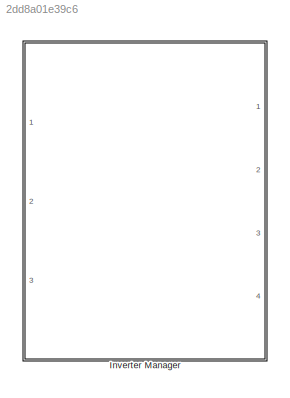
MODEL slx_2dd8a01e39c6
KIND library
CONFIG AbsTol = auto
CONFIG EnableMultiTasking = off
CONFIG FixedStep = auto
CONFIG MaxStep = auto
CONFIG MinStep = auto
CONFIG RelTol = 1e-3
CONFIG SampleTimeConstraint = Unconstrained
CONFIG Solver = VariableStepAuto
CONFIG SolverName = VariableStepAuto
CONFIG StartTime = 0.0
CONFIG StopTime = 10.0
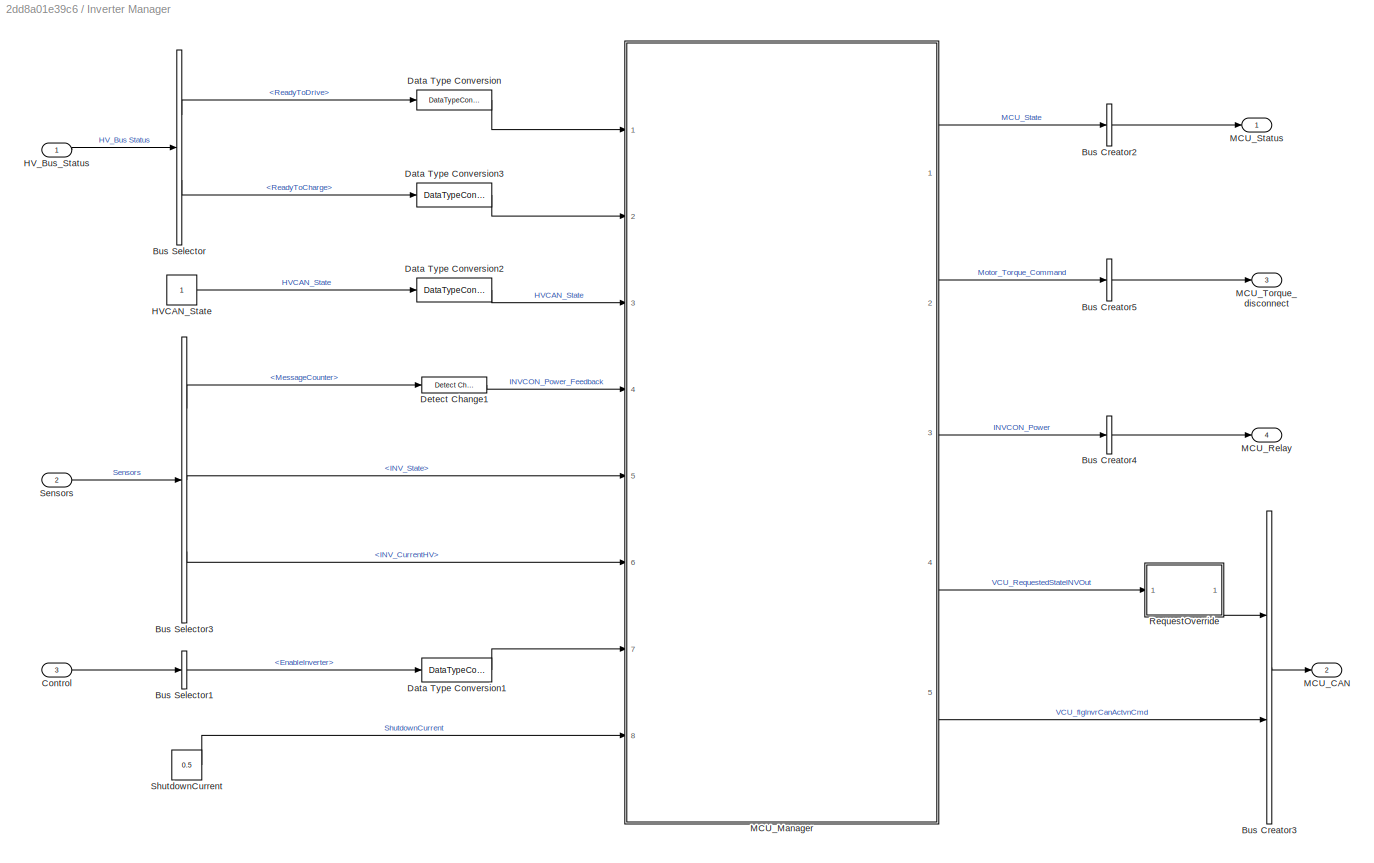
BLOCK [SubSystem] Inverter Manager
  Ports = [3, 4]
  RequestExecContextInheritance = off
  Variant = off
BLOCK [BusCreator] Inverter Manager/Bus Creator2
  DisplayOption = bar
  InheritFromInputs = on
  Inputs = 1
  Ports = [1, 1]
BLOCK [BusCreator] Inverter Manager/Bus Creator3
  DisplayOption = bar
  InheritFromInputs = on
  Inputs = 2
  Ports = [2, 1]
BLOCK [BusCreator] Inverter Manager/Bus Creator4
  DisplayOption = bar
  InheritFromInputs = on
  Inputs = 1
  Ports = [1, 1]
BLOCK [BusCreator] Inverter Manager/Bus Creator5
  DisplayOption = bar
  InheritFromInputs = on
  Inputs = 1
  Ports = [1, 1]
BLOCK [BusSelector] Inverter Manager/Bus Selector
  OutputAsBus = off
  OutputSignals = ReadyToDrive,ReadyToCharge
  Ports = [1, 2]
BLOCK [BusSelector] Inverter Manager/Bus Selector1
  OutputAsBus = off
  OutputSignals = EnableInverter
  Ports = [1, 1]
BLOCK [BusSelector] Inverter Manager/Bus Selector3
  OutputAsBus = off
  OutputSignals = from_CAN.fromHV_CAN.from_MCU.INV_VCU_01.MessageCounter,from_CAN.fromHV_CAN.from_MCU.INV_VCU_01.INV_State,from_CAN.fromHV_CAN.from_MCU.INV_VCU_01.INV_CurrentHV
  Ports = [1, 3]
BLOCK [Inport] Inverter Manager/Control
  IconDisplay = Port number
  Port = 3
BLOCK [DataTypeConversion] Inverter Manager/Data Type Conversion
  OutDataTypeStr = boolean
  RndMeth = Floor
  SaturateOnIntegerOverflow = off
BLOCK [DataTypeConversion] Inverter Manager/Data Type Conversion1
  OutDataTypeStr = boolean
  RndMeth = Floor
  SaturateOnIntegerOverflow = off
BLOCK [DataTypeConversion] Inverter Manager/Data Type Conversion2
  RndMeth = Floor
  SaturateOnIntegerOverflow = off
BLOCK [DataTypeConversion] Inverter Manager/Data Type Conversion3
  OutDataTypeStr = boolean
  RndMeth = Floor
  SaturateOnIntegerOverflow = off
BLOCK [Reference] Inverter Manager/Detect Change1  REF=simulink/Logic and Bit
Operations/Detect
Change
  Ports = [1, 1]
  SourceBlock = simulink/Logic and Bit\nOperations/Detect\nChange
  SourceProductBaseCode = SL
  SourceProductName = Simulink
  SourceType = Detect Change
BLOCK [Constant] Inverter Manager/HVCAN_State
BLOCK [Inport] Inverter Manager/HV_Bus_Status
  IconDisplay = Port number
BLOCK [Outport] Inverter Manager/MCU_CAN
  IconDisplay = Port number
  Port = 2
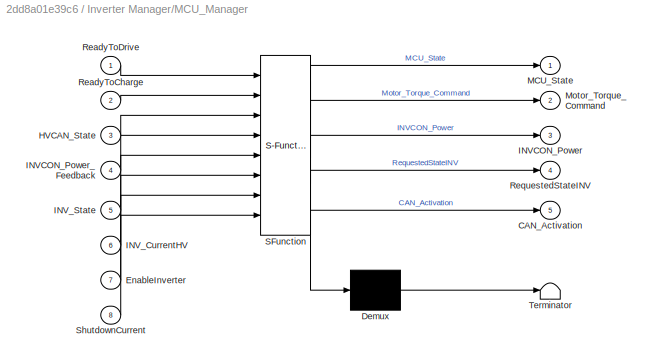
BLOCK [SubSystem] Inverter Manager/MCU_Manager 
  ErrorFcn = Stateflow.Translate.translate
  PermitHierarchicalResolution = ExplicitOnly
  Ports = [8, 5]
  RequestExecContextInheritance = off
  SFBlockType = Chart
  TreatAsAtomicUnit = on
  Variant = off
BLOCK [Demux] Inverter Manager/MCU_Manager / Demux 
  Outputs = 1
  Ports = [1, 1]
BLOCK [S-Function] Inverter Manager/MCU_Manager / SFunction 
  EnableBusSupport = off
  FunctionName = sf_sfun
  PortCounts = [8 6]
  Ports = [8, 6]
  SFcnIsStateOwnerBlock = off
  SFunctionDeploymentMode = off
  Tag = Stateflow S-Function lib_InverterManager 38
BLOCK [Terminator] Inverter Manager/MCU_Manager / Terminator 
BLOCK [Outport] Inverter Manager/MCU_Manager /CAN_Activation
  IconDisplay = Port number
  Port = 5
BLOCK [Inport] Inverter Manager/MCU_Manager /EnableInverter
  IconDisplay = Port number
  Port = 7
BLOCK [Inport] Inverter Manager/MCU_Manager /HVCAN_State
  IconDisplay = Port number
  Port = 3
BLOCK [Outport] Inverter Manager/MCU_Manager /INVCON_Power
  IconDisplay = Port number
  Port = 3
BLOCK [Inport] Inverter Manager/MCU_Manager /INVCON_Power_Feedback
  IconDisplay = Port number
  Port = 4
BLOCK [Inport] Inverter Manager/MCU_Manager /INV_CurrentHV
  IconDisplay = Port number
  Port = 6
BLOCK [Inport] Inverter Manager/MCU_Manager /INV_State
  IconDisplay = Port number
  Port = 5
BLOCK [Outport] Inverter Manager/MCU_Manager /MCU_State
  IconDisplay = Port number
BLOCK [Outport] Inverter Manager/MCU_Manager /Motor_Torque_Command
  IconDisplay = Port number
  Port = 2
BLOCK [Inport] Inverter Manager/MCU_Manager /ReadyToCharge
  IconDisplay = Port number
  Port = 2
BLOCK [Inport] Inverter Manager/MCU_Manager /ReadyToDrive
  IconDisplay = Port number
BLOCK [Outport] Inverter Manager/MCU_Manager /RequestedStateINV
  IconDisplay = Port number
  Port = 4
BLOCK [Inport] Inverter Manager/MCU_Manager /ShutdownCurrent
  IconDisplay = Port number
  Port = 8
BLOCK [Outport] Inverter Manager/MCU_Relay
  IconDisplay = Port number
  Port = 4
BLOCK [Outport] Inverter Manager/MCU_Status
  IconDisplay = Port number
BLOCK [Outport] Inverter Manager/MCU_Torque_disconnect
  IconDisplay = Port number
  Port = 3
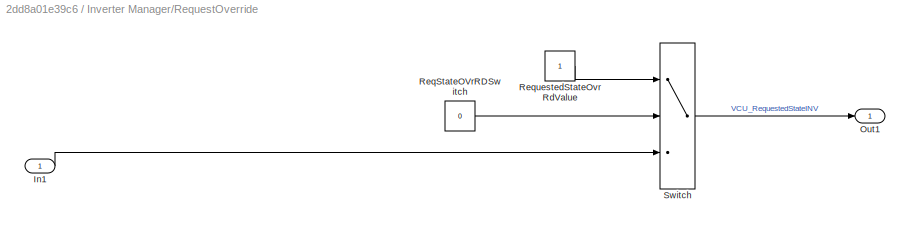
BLOCK [SubSystem] Inverter Manager/RequestOverride
  Ports = [1, 1]
  RequestExecContextInheritance = off
  Variant = off
BLOCK [Inport] Inverter Manager/RequestOverride/In1
  IconDisplay = Port number
BLOCK [Outport] Inverter Manager/RequestOverride/Out1
  IconDisplay = Port number
BLOCK [Constant] Inverter Manager/RequestOverride/ReqStateOVrRDSwitch
  Value = 0
BLOCK [Constant] Inverter Manager/RequestOverride/RequestedStateOvrRdValue
BLOCK [Switch] Inverter Manager/RequestOverride/Switch
  Criteria = u2 > Threshold
  InputSameDT = off
  SaturateOnIntegerOverflow = off
BLOCK [Inport] Inverter Manager/Sensors
  IconDisplay = Port number
  Port = 2
BLOCK [Constant] Inverter Manager/ShutdownCurrent
  Value = 0.5
LINE Inverter Manager/Bus Creator2:1 -> Inverter Manager/MCU_Status:1
LINE Inverter Manager/Bus Creator3:1 -> Inverter Manager/MCU_CAN:1
LINE Inverter Manager/Bus Creator4:1 -> Inverter Manager/MCU_Relay:1
LINE Inverter Manager/Bus Creator5:1 -> Inverter Manager/MCU_Torque_disconnect:1
LINE Inverter Manager/Bus Selector1:1 -> Inverter Manager/Data Type Conversion1:1
LINE Inverter Manager/Bus Selector3:1 -> Inverter Manager/Detect Change1:1
LINE Inverter Manager/Bus Selector3:2 -> Inverter Manager/MCU_Manager :5
LINE Inverter Manager/Bus Selector3:3 -> Inverter Manager/MCU_Manager :6
LINE Inverter Manager/Bus Selector:1 -> Inverter Manager/Data Type Conversion:1
LINE Inverter Manager/Bus Selector:2 -> Inverter Manager/Data Type Conversion3:1
LINE Inverter Manager/Control:1 -> Inverter Manager/Bus Selector1:1
LINE Inverter Manager/Data Type Conversion1:1 -> Inverter Manager/MCU_Manager :7
LINE Inverter Manager/Data Type Conversion2:1 -> Inverter Manager/MCU_Manager :3
LINE Inverter Manager/Data Type Conversion3:1 -> Inverter Manager/MCU_Manager :2
LINE Inverter Manager/Data Type Conversion:1 -> Inverter Manager/MCU_Manager :1
LINE Inverter Manager/Detect Change1:1 -> Inverter Manager/MCU_Manager :4
LINE Inverter Manager/HVCAN_State:1 -> Inverter Manager/Data Type Conversion2:1
LINE Inverter Manager/HV_Bus_Status:1 -> Inverter Manager/Bus Selector:1
LINE Inverter Manager/MCU_Manager :1 -> Inverter Manager/Bus Creator2:1
LINE Inverter Manager/MCU_Manager :2 -> Inverter Manager/Bus Creator5:1
LINE Inverter Manager/MCU_Manager :3 -> Inverter Manager/Bus Creator4:1
LINE Inverter Manager/MCU_Manager :4 -> Inverter Manager/RequestOverride:1
LINE Inverter Manager/MCU_Manager :5 -> Inverter Manager/Bus Creator3:2
LINE Inverter Manager/RequestOverride/In1:1 -> Inverter Manager/RequestOverride/Switch:3
LINE Inverter Manager/RequestOverride/ReqStateOVrRDSwitch:1 -> Inverter Manager/RequestOverride/Switch:2
LINE Inverter Manager/RequestOverride/RequestedStateOvrRdValue:1 -> Inverter Manager/RequestOverride/Switch:1
LINE Inverter Manager/RequestOverride/Switch:1 -> Inverter Manager/RequestOverride/Out1:1
LINE Inverter Manager/RequestOverride:1 -> Inverter Manager/Bus Creator3:1
LINE Inverter Manager/Sensors:1 -> Inverter Manager/Bus Selector3:1
LINE Inverter Manager/ShutdownCurrent:1 -> Inverter Manager/MCU_Manager :8
CHART Inverter Manager/MCU_Manager
 states=21 transitions=30
  STATE_LABEL 'MCU_Initialization'
  STATE_LABEL 'MCU_Request_Standby\nen:\nMCU_State = 1;\nRequestedStateINV = 3;\nCAN_Activation = 1;\n'
  STATE_LABEL 'Power_Off_INVCON\nentry:\nMCU_State = 0;\nINVCON_Power =0;\n'
  STATE_LABEL 'Power_On_INVCON\nen:MCU_State = 2;\nINVCON_Power =1;'
  STATE_LABEL 'HV_CAN_Actuation_Fault\nen:\nMCU_State = -1;\nCAN_Activation = 0;\n'
  STATE_LABEL 'INVCON_Power_Fault\nen:\nMCU_State = -2;\nINVCON_Power =0;\nCAN_Activation = 0;\n'
  STATE_LABEL '{Timer=0;}'
  STATE_LABEL '[HVCAN_State]\n'
  STATE_LABEL '[HVCAN_State]'
  STATE_LABEL 'after(3,sec)'
  STATE_LABEL '[~INVCON_Power_Feedback]'
  STATE_LABEL 'after(5,sec)'
  STATE_LABEL 'after(5,sec)\n[INV_State ~= 3]'
  STATE_LABEL 'MCU_Request_Standby\nen:\nMCU_State = 1;\nRequestedStateINV = 3;\nCAN_Activation = 1;\n'
  STATE_LABEL 'Power_Off_INVCON\nentry:\nMCU_State = 0;\nINVCON_Power =0;\n'
  STATE_LABEL 'Power_On_INVCON\nen:MCU_State = 2;\nINVCON_Power =1;'
  STATE_LABEL 'HV_CAN_Actuation_Fault\nen:\nMCU_State = -1;\nCAN_Activation = 0;\n'
  STATE_LABEL 'INVCON_Power_Fault\nen:\nMCU_State = -2;\nINVCON_Power =0;\nCAN_Activation = 0;\n'
  STATE_LABEL 'MCU_ChargeMode'
  STATE_LABEL 'MCU_Ready\nen:\nMCU_State = 7;'
  STATE_LABEL 'MCU_Off\nen:\nMCU_State = 8;\nRequestedStateINV = 3;'
  STATE_LABEL '[~ReadyToCharge]'
  STATE_LABEL 'MCU_Ready\nen:\nMCU_State = 7;'
  STATE_LABEL 'MCU_Off\nen:\nMCU_State = 8;\nRequestedStateINV = 3;'
  STATE_LABEL 'MCU_TorqueMode'
  STATE_LABEL 'MCU_Enable\nen:MCU_State = 4;\nRequestedStateINV = 8;\nduring: Timer = Timer + 1;'
  STATE_LABEL 'MCU_Ready\nen:\nMCU_State = 3;'
  STATE_LABEL 'MCU_Running\nen:\nMCU_State =5;'
  STATE_LABEL 'TorqueCommand_Reject_Fault\nen:\nMCU_State = -3;'
  STATE_LABEL 'MCU_Stop\nen:\nMCU_State = 6;\nRequestedStateINV = 3;'
  STATE_LABEL '[INV_State == 8]'
  STATE_LABEL '[EnableInverter]\n{Timer = 0;}'
  STATE_LABEL 'after(5,sec)'
  STATE_LABEL '[~ReadyToDrive]'
  STATE_LABEL 'MCU_Enable\nen:MCU_State = 4;\nRequestedStateINV = 8;\nduring: Timer = Timer + 1;'
  STATE_LABEL 'MCU_Ready\nen:\nMCU_State = 3;'
  STATE_LABEL 'MCU_Running\nen:\nMCU_State =5;'
  STATE_LABEL 'TorqueCommand_Reject_Fault\nen:\nMCU_State = -3;'
  STATE_LABEL 'MCU_Stop\nen:\nMCU_State = 6;\nRequestedStateINV = 3;'
  STATE_LABEL 'MCU_Shutdown'
